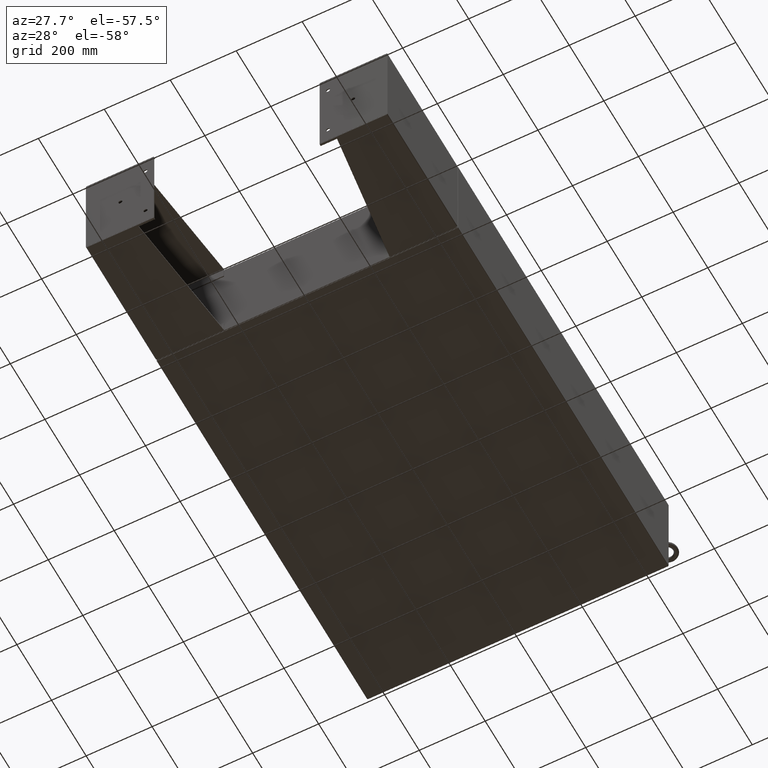
[diagram: clean part render]
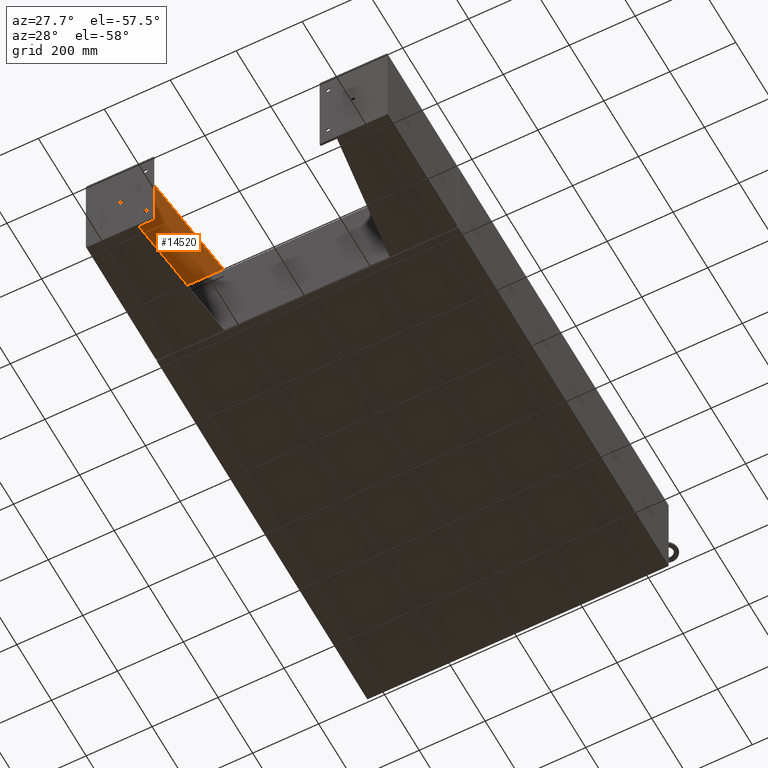
[diagram: same view with one face highlighted and labeled with its STEP entity id]
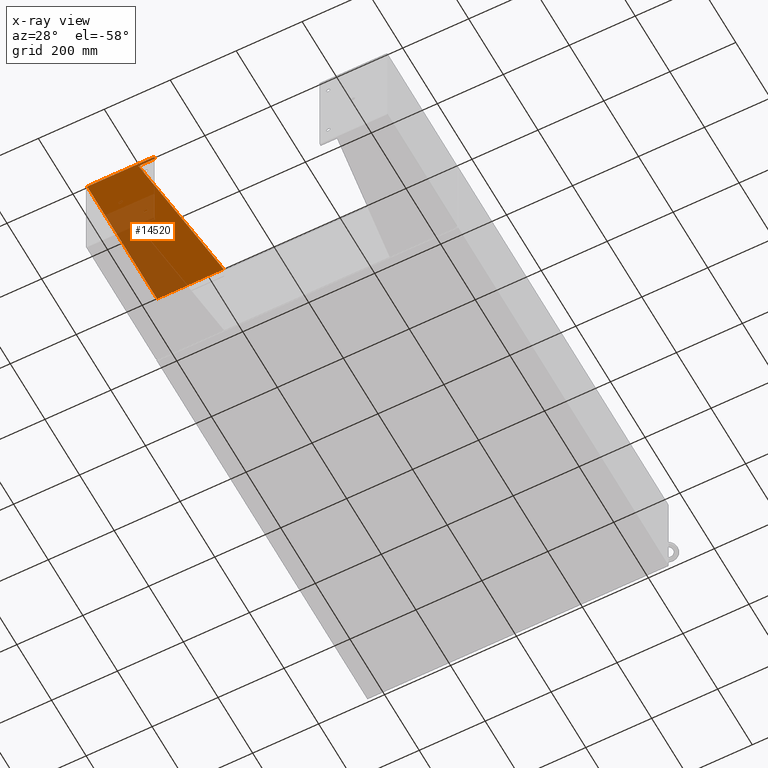
[diagram: x-ray of the same camera — body ghosted, the highlighted face saturated]
A machine part, auxiliary view. The second image highlights one B-rep face of the part: STEP entity #14520.
The next image is the same camera in x-ray: the body ghosted, the highlighted face saturated — about 38% of this face is hidden behind the body in this view.
In plain terms, the highlighted planar face has unit normal (0, 0, -1).
Its self-contained STEP definition (entity closure, byte-faithful):
#302 = EDGE_CURVE ( 'NONE', #22162, #20625, #17615, .T. ) ;
#572 = CARTESIAN_POINT ( 'NONE',  ( -5.896000000000021200, -7.749999999999999100, 6.052216497445934700 ) ) ;
#1323 = CARTESIAN_POINT ( 'NONE',  ( -5.896000000000000800, -7.999999999999999100, 0.03899999999999923000 ) ) ;
#1742 = VECTOR ( 'NONE', #33005, 39.37007874015748100 ) ;
#1812 = CARTESIAN_POINT ( 'NONE',  ( -5.896000000000029200, -7.749999999999999100, 8.001000000000015400 ) ) ;
#2737 = CARTESIAN_POINT ( 'NONE',  ( -5.896000000000030100, 8.000000000000001800, 8.000999999999999400 ) ) ;
#3278 = FACE_OUTER_BOUND ( 'NONE', #38276, .T. ) ;
#4089 = EDGE_CURVE ( 'NONE', #20625, #40148, #27418, .T. ) ;
#4196 = CARTESIAN_POINT ( 'NONE',  ( -5.896000000000000800, 8.000000000000001800, 0.03900000000000031900 ) ) ;
#5229 = CARTESIAN_POINT ( 'NONE',  ( -5.896000000000030100, 8.000000000000001800, 8.000999999999999400 ) ) ;
#6659 = VECTOR ( 'NONE', #10406, 39.37007874015748100 ) ;
#6897 = ORIENTED_EDGE ( 'NONE', *, *, #13940, .F. ) ;
#9023 = EDGE_CURVE ( 'NONE', #41345, #37241, #24974, .T. ) ;
#9534 = CARTESIAN_POINT ( 'NONE',  ( -5.896000000000015900, 7.857000000000001100, 8.000999999999999400 ) ) ;
#10406 = DIRECTION ( 'NONE',  ( -0.0000000000000000000, 1.000000000000000000, -0.0000000000000000000 ) ) ;
#13026 = DIRECTION ( 'NONE',  ( 0.0000000000000000000, 0.0000000000000000000, -1.000000000000000000 ) ) ;
#13467 = DIRECTION ( 'NONE',  ( -4.399772607369798900E-016, 0.9922942345449394800, 0.1239038017531047700 ) ) ;
#13884 = VECTOR ( 'NONE', #51179, 39.37007874015748100 ) ;
#13940 = EDGE_CURVE ( 'NONE', #37241, #22162, #16872, .T. ) ;
#14520 = ADVANCED_FACE ( 'NONE', ( #3278 ), #20245, .T. ) ;
#15470 = EDGE_CURVE ( 'NONE', #36165, #41345, #17340, .T. ) ;
#15713 = ORIENTED_EDGE ( 'NONE', *, *, #15470, .F. ) ;
#16872 = LINE ( 'NONE', #45676, #29146 ) ;
#17340 = LINE ( 'NONE', #9534, #25702 ) ;
#17615 = LINE ( 'NONE', #2737, #6659 ) ;
#17872 = CARTESIAN_POINT ( 'NONE',  ( -5.896000000000015900, 7.857000000000001100, 8.000999999999999400 ) ) ;
#18136 = LINE ( 'NONE', #43892, #48404 ) ;
#20245 = PLANE ( 'NONE',  #39849 ) ;
#20625 = VERTEX_POINT ( 'NONE', #31295 ) ;
#22162 = VERTEX_POINT ( 'NONE', #39313 ) ;
#22914 = EDGE_CURVE ( 'NONE', #40148, #36165, #18136, .T. ) ;
#24974 = LINE ( 'NONE', #4196, #1742 ) ;
#25523 = ORIENTED_EDGE ( 'NONE', *, *, #4089, .F. ) ;
#25702 = VECTOR ( 'NONE', #13026, 39.37007874015748100 ) ;
#27418 = LINE ( 'NONE', #1812, #13884 ) ;
#28343 = DIRECTION ( 'NONE',  ( 3.550958521948298200E-015, 0.0000000000000000000, -1.000000000000000000 ) ) ;
#29146 = VECTOR ( 'NONE', #42407, 39.37007874015748100 ) ;
#31024 = ORIENTED_EDGE ( 'NONE', *, *, #22914, .F. ) ;
#31295 = CARTESIAN_POINT ( 'NONE',  ( -5.896000000000029200, -7.749999999999999100, 8.001000000000015400 ) ) ;
#32925 = CARTESIAN_POINT ( 'NONE',  ( -5.896000000000000800, 7.857000000000002000, 0.03900000000000031900 ) ) ;
#33005 = DIRECTION ( 'NONE',  ( 0.0000000000000000000, -1.000000000000000000, 0.0000000000000000000 ) ) ;
#36165 = VERTEX_POINT ( 'NONE', #17872 ) ;
#37241 = VERTEX_POINT ( 'NONE', #1323 ) ;
#37564 = ORIENTED_EDGE ( 'NONE', *, *, #302, .F. ) ;
#38206 = ORIENTED_EDGE ( 'NONE', *, *, #9023, .F. ) ;
#38276 = EDGE_LOOP ( 'NONE', ( #31024, #25523, #37564, #6897, #38206, #15713 ) ) ;
#39313 = CARTESIAN_POINT ( 'NONE',  ( -5.896000000000030100, -7.999999999999999100, 8.000999999999999400 ) ) ;
#39849 = AXIS2_PLACEMENT_3D ( 'NONE', #5229, #40707, #28343 ) ;
#40148 = VERTEX_POINT ( 'NONE', #572 ) ;
#40707 = DIRECTION ( 'NONE',  ( 1.000000000000000000, 0.0000000000000000000, 3.550958521948298200E-015 ) ) ;
#41345 = VERTEX_POINT ( 'NONE', #32925 ) ;
#42407 = DIRECTION ( 'NONE',  ( -3.550958521948298200E-015, -0.0000000000000000000, 1.000000000000000000 ) ) ;
#43892 = CARTESIAN_POINT ( 'NONE',  ( -5.896000000000023900, -7.749999999999999100, 6.052216497445934700 ) ) ;
#45676 = CARTESIAN_POINT ( 'NONE',  ( -5.896000000000030100, -7.999999999999999100, 8.000999999999999400 ) ) ;
#48404 = VECTOR ( 'NONE', #13467, 39.37007874015748100 ) ;
#51179 = DIRECTION ( 'NONE',  ( 3.550958521948298200E-015, 0.0000000000000000000, -1.000000000000000000 ) ) ;